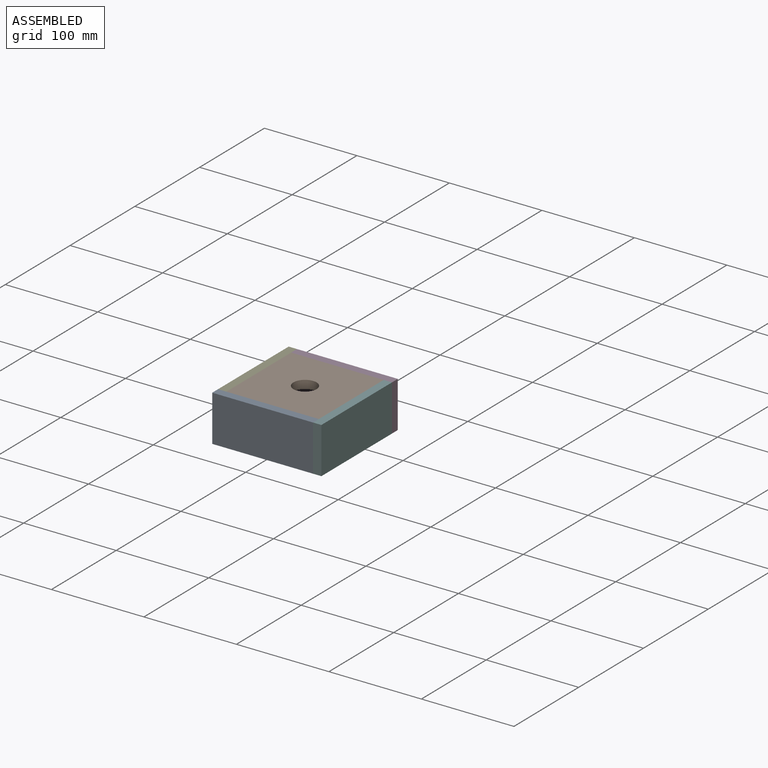
[diagram: assembled view]
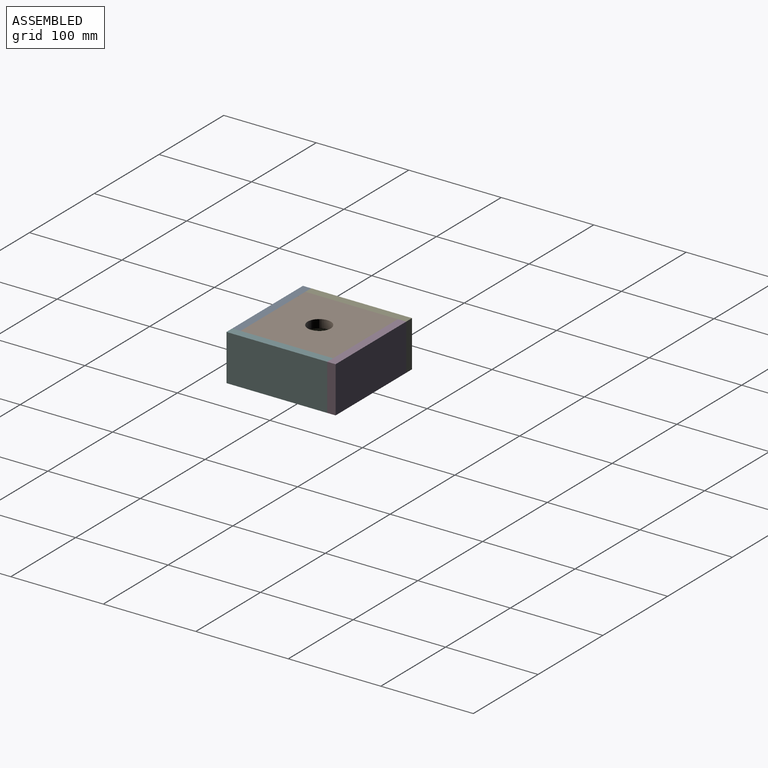
[diagram: assembled view, second angle]
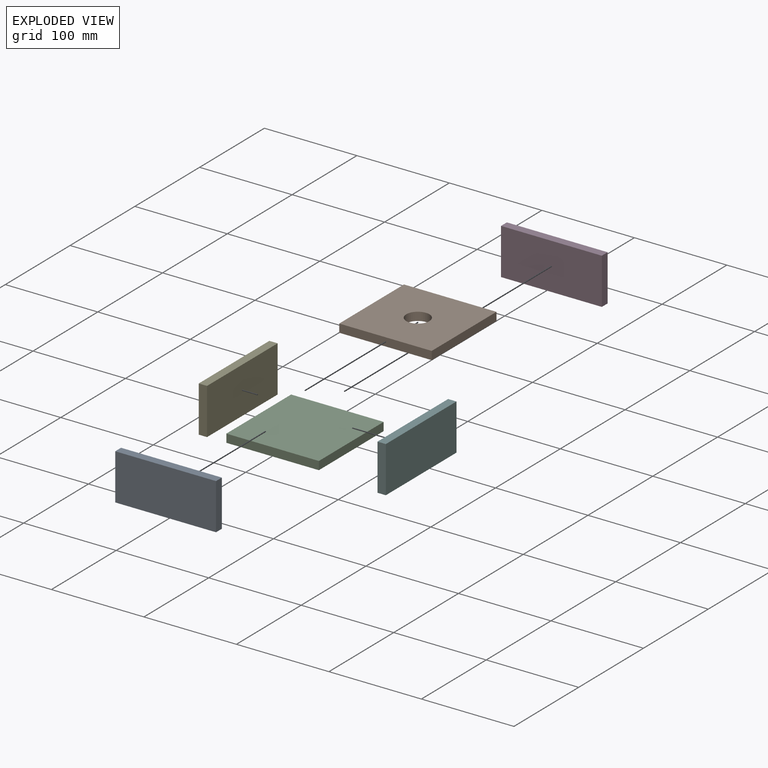
[diagram: exploded view]
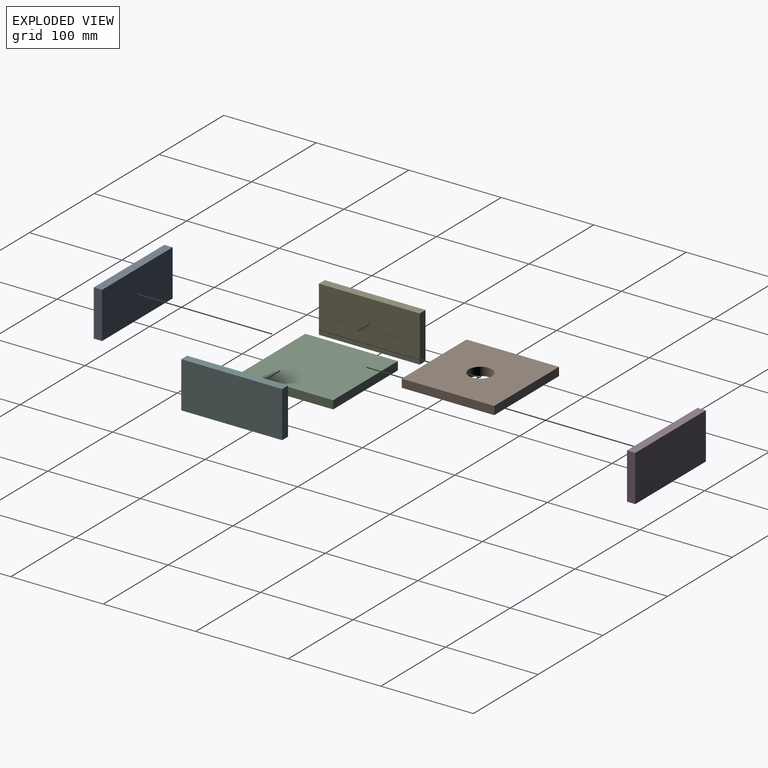
[diagram: exploded view, second angle]
ASSEMBLY  parts=6 mates=5
PART A: 6 faces, bbox 109x9x50 mm
  f0: plane 50x9mm, normal (1,0,0), area 450mm2, adj f1,f3,f4,f5
  f1: plane 109x50mm, normal (0,1,0), area 5450mm2, adj f0,f2,f4,f5
  f2: plane 50x9mm, normal (-1,0,0), area 450mm2, adj f1,f3,f4,f5
  f3: plane 109x50mm, normal (0,-1,0), area 5450mm2, adj f0,f2,f4,f5
  f4: plane 109x9mm, normal (0,0,1), area 981mm2, adj f0,f1,f2,f3
  f5: plane 109x9mm, normal (0,0,-1), area 981mm2, adj f0,f1,f2,f3
PART B: 7 faces, bbox 100x100x9 mm
  f0: plane 100x9mm, normal (1,0,0), area 900mm2, adj f1,f3,f5,f6
  f1: plane 100x9mm, normal (0,1,0), area 900mm2, adj f0,f2,f5,f6
  f2: plane 100x9mm, normal (-1,0,0), area 900mm2, adj f1,f3,f5,f6
  f3: plane 100x9mm, normal (0,-1,0), area 900mm2, adj f0,f2,f5,f6
  f4: cylinder r=12.5mm len=25mm, axis (0,0,-1), area 706.9mm2, adj f5,f6
  f5: plane 100x100mm, normal (0,0,1), area 9509.1mm2, adj f0,f1,f2,f3,f4
  f6: plane 100x100mm, normal (0,0,-1), area 9509.1mm2, adj f0,f1,f2,f3,f4
PART C: 6 faces, bbox 100x100x9 mm
  f0: plane 100x9mm, normal (1,0,0), area 900mm2, adj f1,f3,f4,f5
  f1: plane 100x9mm, normal (0,1,0), area 900mm2, adj f0,f2,f4,f5
  f2: plane 100x9mm, normal (-1,0,0), area 900mm2, adj f1,f3,f4,f5
  f3: plane 100x9mm, normal (0,-1,0), area 900mm2, adj f0,f2,f4,f5
  f4: plane 100x100mm, normal (0,0,1), area 10000mm2, adj f0,f1,f2,f3
  f5: plane 100x100mm, normal (0,0,-1), area 10000mm2, adj f0,f1,f2,f3
PART D: same geometry as A
PART E: same geometry as A
PART F: same geometry as A
PLACE A t=(-0.65,31.57,21.14)mm
PLACE B t=(3.85,86.07,62.14)mm
PLACE C t=(3.85,86.07,21.14)mm fixed
PLACE D t=(8.35,140.57,21.14)mm
PLACE E rot(axis=(0,0,-1),90deg) t=(-50.65,90.57,21.14)mm
PLACE F rot(axis=(0,0,-1),90deg) t=(58.35,81.57,21.14)mm
MATE slider C.f0 <-> F.f3  axis (1,0,0) through (53.85,136.07,21.14)mm
MATE slider C.f1 <-> D.f3  axis (0,1,0) through (-46.15,136.07,21.14)mm
MATE slider C.f2 <-> E.f1  axis (-1,0,0) through (-46.15,36.07,21.14)mm
MATE slider C.f3 <-> A.f1  axis (0,-1,0) through (53.85,36.07,21.14)mm
MATE slider B.f1 <-> D.f3  axis (0,1,0) through (-46.15,136.07,71.14)mm
